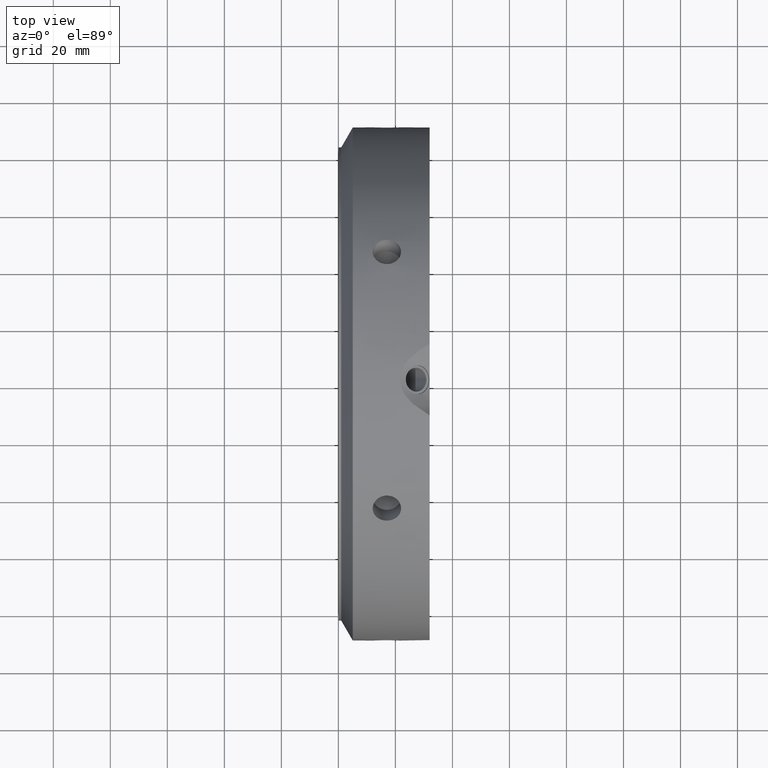
[diagram: clean part render]
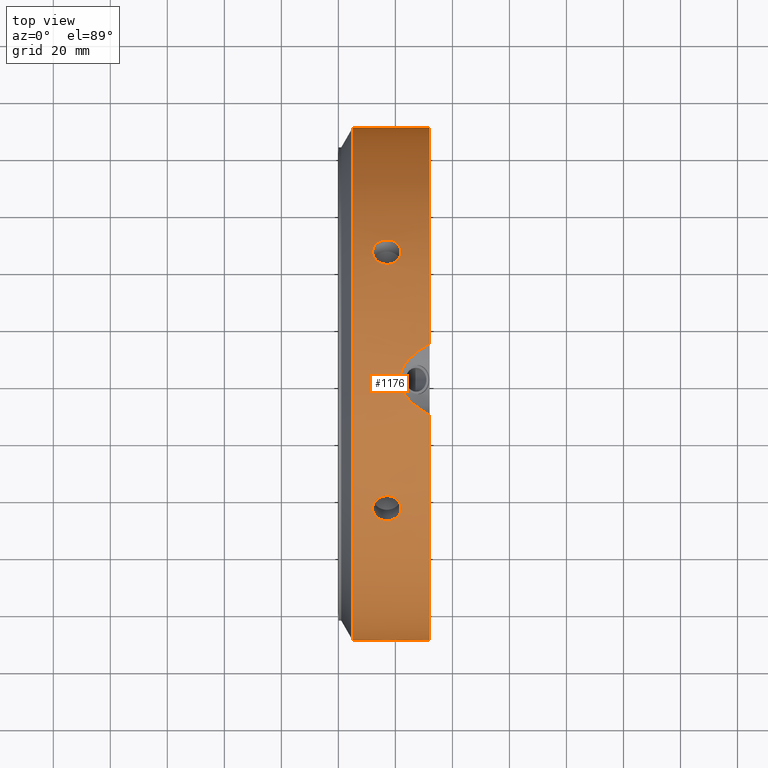
[diagram: same view with one face highlighted and labeled with its STEP entity id]
A machine part, top view. The second image highlights one B-rep face of the part: STEP entity #1176.
In plain terms, the highlighted cylindrical surface (bore or boss wall) has radius 90 mm, axis along (1, 0, 0).
Its self-contained STEP definition (entity closure, byte-faithful):
#90=CARTESIAN_POINT('',(11.999999999999977,45.000000000000071,77.942286340599438));
#91=VERTEX_POINT('',#90);
#92=CARTESIAN_POINT('',(21.999999999999975,45.000000000000071,77.942286340599438));
#93=VERTEX_POINT('',#92);
#94=CARTESIAN_POINT('',(11.999999999999977,45.000000000000071,77.942286340599438));
#95=CARTESIAN_POINT('',(11.999999999999977,45.543820422916994,77.628311473037542));
#96=CARTESIAN_POINT('',(12.125522356060772,46.120189340378353,77.287176657588375));
#97=CARTESIAN_POINT('',(12.635830957704293,47.173911231499716,76.648559279471741));
#98=CARTESIAN_POINT('',(13.020610050421402,47.65146083140381,76.351395490295729));
#99=CARTESIAN_POINT('',(13.908322280700048,48.402792389598673,75.877315461861841));
#100=CARTESIAN_POINT('',(14.470474195681222,48.726726208106506,75.66882732439413));
#101=CARTESIAN_POINT('',(15.702332604151366,49.155553058668119,75.390960195452266));
#102=CARTESIAN_POINT('',(16.372050062583938,49.260628907950817,75.321912081366861));
#103=CARTESIAN_POINT('',(17.627949937416016,49.260628907950817,75.321912081366861));
#104=CARTESIAN_POINT('',(18.297667395848588,49.155553058668112,75.390960195452266));
#105=CARTESIAN_POINT('',(19.529525804318734,48.726726208106498,75.66882732439413));
#106=CARTESIAN_POINT('',(20.091677719299909,48.402792389598659,75.877315461861841));
#107=CARTESIAN_POINT('',(20.979389949578554,47.651460831403796,76.351395490295729));
#108=CARTESIAN_POINT('',(21.364169042295664,47.173911231499716,76.648559279471741));
#109=CARTESIAN_POINT('',(21.874477643939191,46.120189340378353,77.287176657588375));
#110=CARTESIAN_POINT('',(21.999999999999979,45.543820422916994,77.628311473037542));
#111=CARTESIAN_POINT('',(21.999999999999979,45.000000000000071,77.942286340599438));
#112=B_SPLINE_CURVE_WITH_KNOTS('',3,(#94,#95,#96,#97,#98,#99,#100,#101,#102,#103,#104,#105,#106,#107,#108,#109,#110,#111),.UNSPECIFIED.,.F.,.U.,(4,2,2,2,2,2,2,2,4),(0.753539803523906,0.941924724061048,1.130309644598189,1.318694625823001,1.507079607047813,1.695464588272625,1.883849569497438,2.072234490034578,2.260619410571719),.UNSPECIFIED.);
#113=EDGE_CURVE('',#91,#93,#112,.T.);
#115=CARTESIAN_POINT('',(21.999999999999979,45.000000000000071,77.942286340599438));
#116=CARTESIAN_POINT('',(21.999999999999979,44.456179577083148,78.256261208161334));
#117=CARTESIAN_POINT('',(21.874477643939187,43.87256370205818,78.584843924910047));
#118=CARTESIAN_POINT('',(21.364169042295664,42.792643883750287,79.178085162086603));
#119=CARTESIAN_POINT('',(20.979389949578547,42.296517693286972,79.44307335258263));
#120=CARTESIAN_POINT('',(20.091677719299909,41.510286566138944,79.856705554427393));
#121=CARTESIAN_POINT('',(19.529525804318737,41.167763633450285,80.032996401666225));
#122=CARTESIAN_POINT('',(18.297667395848595,40.71271021562918,80.265437783606529));
#123=CARTESIAN_POINT('',(17.62794993741602,40.600374870106457,80.321912081366861));
#124=CARTESIAN_POINT('',(16.999999999999979,40.600374870106457,80.321912081366861));
#125=CARTESIAN_POINT('',(16.372050062583938,40.600374870106457,80.321912081366861));
#126=CARTESIAN_POINT('',(15.702332604151366,40.712710215629173,80.265437783606501));
#127=CARTESIAN_POINT('',(14.470474195681222,41.167763633450278,80.032996401666196));
#128=CARTESIAN_POINT('',(13.908322280700048,41.51028656613893,79.856705554427393));
#129=CARTESIAN_POINT('',(13.020610050421404,42.296517693286958,79.44307335258263));
#130=CARTESIAN_POINT('',(12.63583095770429,42.792643883750287,79.178085162086603));
#131=CARTESIAN_POINT('',(12.125522356060772,43.87256370205818,78.584843924910047));
#132=CARTESIAN_POINT('',(11.999999999999977,44.456179577083141,78.256261208161334));
#133=CARTESIAN_POINT('',(11.999999999999977,45.000000000000064,77.942286340599438));
#134=B_SPLINE_CURVE_WITH_KNOTS('',3,(#115,#116,#117,#118,#119,#120,#121,#122,#123,#124,#125,#126,#127,#128,#129,#130,#131,#132,#133),.UNSPECIFIED.,.F.,.U.,(4,2,2,2,3,2,2,2,4),(2.260619410571719,2.44900433110886,2.637389251646001,2.825774232870812,3.014159214095625,3.202544195320436,3.390929176545248,3.579314097082389,3.767699017619531),.UNSPECIFIED.);
#135=EDGE_CURVE('',#93,#91,#134,.T.);
#202=CARTESIAN_POINT('',(11.999999999999977,90.0,-5.995204E-014));
#203=VERTEX_POINT('',#202);
#204=CARTESIAN_POINT('',(21.999999999999975,90.0,-5.329071E-014));
#205=VERTEX_POINT('',#204);
#206=CARTESIAN_POINT('',(11.999999999999977,90.0,-5.523360E-014));
#207=CARTESIAN_POINT('',(11.999999999999977,90.0,-0.627949735123859));
#208=CARTESIAN_POINT('',(12.12552235606077,89.992753042436391,-1.29766726732172));
#209=CARTESIAN_POINT('',(12.63583095770429,89.966555115249847,-2.529525882614911));
#210=CARTESIAN_POINT('',(13.020610050421404,89.947978524690626,-3.091677862286957));
#211=CARTESIAN_POINT('',(13.908322280700048,89.913078955737475,-3.979390092565601));
#212=CARTESIAN_POINT('',(14.47047419568122,89.894489841556648,-4.36416907727213));
#213=CARTESIAN_POINT('',(15.702332604151364,89.868263274297135,-4.874477588154292));
#214=CARTESIAN_POINT('',(16.372050062583938,89.861003778057139,-5.000000000000055));
#215=CARTESIAN_POINT('',(17.62794993741602,89.861003778057139,-5.000000000000055));
#216=CARTESIAN_POINT('',(18.297667395848588,89.868263274297135,-4.874477588154293));
#217=CARTESIAN_POINT('',(19.52952580431873,89.894489841556648,-4.364169077272132));
#218=CARTESIAN_POINT('',(20.091677719299909,89.913078955737475,-3.979390092565602));
#219=CARTESIAN_POINT('',(20.979389949578547,89.947978524690626,-3.091677862286958));
#220=CARTESIAN_POINT('',(21.364169042295664,89.966555115249847,-2.529525882614911));
#221=CARTESIAN_POINT('',(21.874477643939187,89.992753042436391,-1.29766726732172));
#222=CARTESIAN_POINT('',(21.999999999999975,90.0,-0.62794973512386));
#223=CARTESIAN_POINT('',(21.999999999999975,90.0,-5.703771E-014));
#224=B_SPLINE_CURVE_WITH_KNOTS('',3,(#206,#207,#208,#209,#210,#211,#212,#213,#214,#215,#216,#217,#218,#219,#220,#221,#222,#223),.UNSPECIFIED.,.F.,.U.,(4,2,2,2,2,2,2,2,4),(0.753539803523906,0.941924724061048,1.130309644598189,1.318694625823001,1.507079607047813,1.695464588272625,1.883849569497437,2.072234490034578,2.260619410571719),.UNSPECIFIED.);
#225=EDGE_CURVE('',#203,#205,#224,.T.);
#227=CARTESIAN_POINT('',(21.999999999999979,90.0,-5.676015E-014));
#228=CARTESIAN_POINT('',(21.999999999999979,90.0,0.627949735123748));
#229=CARTESIAN_POINT('',(21.874477643939187,89.992753042436377,1.297667267321605));
#230=CARTESIAN_POINT('',(21.364169042295664,89.966555115249832,2.529525882614796));
#231=CARTESIAN_POINT('',(20.979389949578547,89.947978524690626,3.091677862286846));
#232=CARTESIAN_POINT('',(20.091677719299909,89.913078955737475,3.97939009256549));
#233=CARTESIAN_POINT('',(19.529525804318734,89.894489841556648,4.364169077272019));
#234=CARTESIAN_POINT('',(18.297667395848588,89.868263274297135,4.874477588154179));
#235=CARTESIAN_POINT('',(17.62794993741602,89.861003778057139,4.999999999999945));
#236=CARTESIAN_POINT('',(16.999999999999979,89.861003778057139,4.999999999999945));
#237=CARTESIAN_POINT('',(16.372050062583938,89.861003778057139,4.999999999999945));
#238=CARTESIAN_POINT('',(15.702332604151366,89.868263274297135,4.874477588154179));
#239=CARTESIAN_POINT('',(14.470474195681224,89.894489841556648,4.364169077272019));
#240=CARTESIAN_POINT('',(13.90832228070005,89.913078955737475,3.979390092565491));
#241=CARTESIAN_POINT('',(13.020610050421404,89.947978524690626,3.091677862286846));
#242=CARTESIAN_POINT('',(12.63583095770429,89.966555115249847,2.529525882614798));
#243=CARTESIAN_POINT('',(12.12552235606077,89.992753042436391,1.297667267321607));
#244=CARTESIAN_POINT('',(11.999999999999977,90.0,0.627949735123748));
#245=CARTESIAN_POINT('',(11.999999999999977,90.0,-5.537237E-014));
#246=B_SPLINE_CURVE_WITH_KNOTS('',3,(#227,#228,#229,#230,#231,#232,#233,#234,#235,#236,#237,#238,#239,#240,#241,#242,#243,#244,#245),.UNSPECIFIED.,.F.,.U.,(4,2,2,2,3,2,2,2,4),(2.260619410571719,2.44900433110886,2.637389251646001,2.825774232870813,3.014159214095625,3.202544195320437,3.390929176545249,3.57931409708239,3.767699017619532),.UNSPECIFIED.);
#247=EDGE_CURVE('',#205,#203,#246,.T.);
#314=CARTESIAN_POINT('',(11.999999999999977,44.999999999999986,-77.942286340599495));
#315=VERTEX_POINT('',#314);
#316=CARTESIAN_POINT('',(21.999999999999975,44.999999999999986,-77.942286340599495));
#317=VERTEX_POINT('',#316);
#318=CARTESIAN_POINT('',(11.999999999999979,44.999999999999964,-77.942286340599495));
#319=CARTESIAN_POINT('',(11.999999999999979,44.456179577083049,-78.256261208161391));
#320=CARTESIAN_POINT('',(12.12552235606077,43.872563702058081,-78.584843924910103));
#321=CARTESIAN_POINT('',(12.635830957704288,42.792643883750188,-79.17808516208666));
#322=CARTESIAN_POINT('',(13.020610050421407,42.296517693286866,-79.443073352582672));
#323=CARTESIAN_POINT('',(13.90832228070005,41.510286566138831,-79.856705554427435));
#324=CARTESIAN_POINT('',(14.470474195681216,41.167763633450193,-80.032996401666253));
#325=CARTESIAN_POINT('',(15.702332604151355,40.712710215629087,-80.265437783606558));
#326=CARTESIAN_POINT('',(16.372050062583938,40.60037487010635,-80.321912081366918));
#327=CARTESIAN_POINT('',(17.62794993741602,40.60037487010635,-80.321912081366918));
#328=CARTESIAN_POINT('',(18.297667395848599,40.712710215629087,-80.265437783606558));
#329=CARTESIAN_POINT('',(19.529525804318737,41.167763633450193,-80.032996401666253));
#330=CARTESIAN_POINT('',(20.091677719299909,41.510286566138831,-79.856705554427435));
#331=CARTESIAN_POINT('',(20.979389949578547,42.296517693286859,-79.443073352582672));
#332=CARTESIAN_POINT('',(21.364169042295664,42.792643883750188,-79.17808516208666));
#333=CARTESIAN_POINT('',(21.874477643939187,43.872563702058081,-78.584843924910103));
#334=CARTESIAN_POINT('',(21.999999999999979,44.456179577083041,-78.256261208161405));
#335=CARTESIAN_POINT('',(21.999999999999979,44.999999999999964,-77.942286340599495));
#336=B_SPLINE_CURVE_WITH_KNOTS('',3,(#318,#319,#320,#321,#322,#323,#324,#325,#326,#327,#328,#329,#330,#331,#332,#333,#334,#335),.UNSPECIFIED.,.F.,.U.,(4,2,2,2,2,2,2,2,4),(0.753539803523907,0.941924724061048,1.130309644598189,1.318694625823001,1.507079607047813,1.695464588272625,1.883849569497438,2.072234490034578,2.260619410571719),.UNSPECIFIED.);
#337=EDGE_CURVE('',#315,#317,#336,.T.);
#339=CARTESIAN_POINT('',(21.999999999999979,44.999999999999964,-77.942286340599495));
#340=CARTESIAN_POINT('',(21.999999999999979,45.543820422916895,-77.628311473037598));
#341=CARTESIAN_POINT('',(21.874477643939187,46.120189340378261,-77.287176657588432));
#342=CARTESIAN_POINT('',(21.364169042295664,47.173911231499616,-76.648559279471797));
#343=CARTESIAN_POINT('',(20.979389949578547,47.65146083140371,-76.351395490295772));
#344=CARTESIAN_POINT('',(20.091677719299909,48.402792389598581,-75.877315461861897));
#345=CARTESIAN_POINT('',(19.52952580431873,48.726726208106399,-75.668827324394186));
#346=CARTESIAN_POINT('',(18.297667395848592,49.155553058668019,-75.390960195452323));
#347=CARTESIAN_POINT('',(17.62794993741602,49.260628907950739,-75.321912081366918));
#348=CARTESIAN_POINT('',(16.999999999999979,49.260628907950739,-75.321912081366918));
#349=CARTESIAN_POINT('',(16.372050062583938,49.260628907950739,-75.321912081366918));
#350=CARTESIAN_POINT('',(15.702332604151362,49.155553058668026,-75.390960195452323));
#351=CARTESIAN_POINT('',(14.470474195681224,48.726726208106406,-75.668827324394186));
#352=CARTESIAN_POINT('',(13.90832228070005,48.402792389598581,-75.877315461861897));
#353=CARTESIAN_POINT('',(13.020610050421404,47.65146083140371,-76.351395490295772));
#354=CARTESIAN_POINT('',(12.635830957704284,47.173911231499602,-76.648559279471797));
#355=CARTESIAN_POINT('',(12.125522356060767,46.120189340378239,-77.287176657588432));
#356=CARTESIAN_POINT('',(11.999999999999977,45.543820422916895,-77.628311473037598));
#357=CARTESIAN_POINT('',(11.999999999999977,44.999999999999964,-77.942286340599495));
#358=B_SPLINE_CURVE_WITH_KNOTS('',3,(#339,#340,#341,#342,#343,#344,#345,#346,#347,#348,#349,#350,#351,#352,#353,#354,#355,#356,#357),.UNSPECIFIED.,.F.,.U.,(4,2,2,2,3,2,2,2,4),(2.260619410571719,2.44900433110886,2.637389251646002,2.825774232870814,3.014159214095626,3.202544195320438,3.39092917654525,3.579314097082392,3.767699017619533),.UNSPECIFIED.);
#359=EDGE_CURVE('',#317,#315,#358,.T.);
#426=CARTESIAN_POINT('',(11.999999999999977,-45.000000000000028,-77.942286340599466));
#427=VERTEX_POINT('',#426);
#428=CARTESIAN_POINT('',(21.999999999999975,-45.000000000000028,-77.942286340599466));
#429=VERTEX_POINT('',#428);
#430=CARTESIAN_POINT('',(11.999999999999977,-45.000000000000028,-77.942286340599466));
#431=CARTESIAN_POINT('',(11.999999999999977,-45.543820422916951,-77.628311473037556));
#432=CARTESIAN_POINT('',(12.125522356060767,-46.120189340378303,-77.28717665758839));
#433=CARTESIAN_POINT('',(12.635830957704284,-47.173911231499652,-76.648559279471755));
#434=CARTESIAN_POINT('',(13.020610050421402,-47.65146083140376,-76.351395490295744));
#435=CARTESIAN_POINT('',(13.908322280700048,-48.402792389598631,-75.877315461861855));
#436=CARTESIAN_POINT('',(14.47047419568122,-48.726726208106456,-75.668827324394158));
#437=CARTESIAN_POINT('',(15.702332604151362,-49.155553058668069,-75.390960195452294));
#438=CARTESIAN_POINT('',(16.372050062583938,-49.260628907950789,-75.321912081366889));
#439=CARTESIAN_POINT('',(17.627949937416012,-49.260628907950789,-75.321912081366889));
#440=CARTESIAN_POINT('',(18.297667395848588,-49.155553058668069,-75.390960195452294));
#441=CARTESIAN_POINT('',(19.52952580431873,-48.726726208106456,-75.668827324394158));
#442=CARTESIAN_POINT('',(20.091677719299902,-48.402792389598623,-75.877315461861855));
#443=CARTESIAN_POINT('',(20.979389949578547,-47.65146083140376,-76.351395490295744));
#444=CARTESIAN_POINT('',(21.364169042295657,-47.173911231499673,-76.648559279471741));
#445=CARTESIAN_POINT('',(21.87447764393918,-46.120189340378317,-77.287176657588375));
#446=CARTESIAN_POINT('',(21.999999999999979,-45.543820422916951,-77.628311473037556));
#447=CARTESIAN_POINT('',(21.999999999999979,-45.000000000000028,-77.942286340599466));
#448=B_SPLINE_CURVE_WITH_KNOTS('',3,(#430,#431,#432,#433,#434,#435,#436,#437,#438,#439,#440,#441,#442,#443,#444,#445,#446,#447),.UNSPECIFIED.,.F.,.U.,(4,2,2,2,2,2,2,2,4),(0.753539803523907,0.941924724061048,1.13030964459819,1.318694625823002,1.507079607047813,1.695464588272625,1.883849569497437,2.072234490034578,2.260619410571719),.UNSPECIFIED.);
#449=EDGE_CURVE('',#427,#429,#448,.T.);
#451=CARTESIAN_POINT('',(21.999999999999979,-45.000000000000028,-77.942286340599466));
#452=CARTESIAN_POINT('',(21.999999999999979,-44.456179577083113,-78.256261208161362));
#453=CARTESIAN_POINT('',(21.874477643939191,-43.87256370205813,-78.584843924910061));
#454=CARTESIAN_POINT('',(21.364169042295661,-42.79264388375023,-79.178085162086631));
#455=CARTESIAN_POINT('',(20.979389949578554,-42.296517693286901,-79.443073352582658));
#456=CARTESIAN_POINT('',(20.091677719299909,-41.51028656613888,-79.856705554427407));
#457=CARTESIAN_POINT('',(19.52952580431873,-41.167763633450242,-80.032996401666239));
#458=CARTESIAN_POINT('',(18.297667395848585,-40.712710215629137,-80.265437783606544));
#459=CARTESIAN_POINT('',(17.627949937416012,-40.6003748701064,-80.321912081366889));
#460=CARTESIAN_POINT('',(16.999999999999979,-40.6003748701064,-80.321912081366889));
#461=CARTESIAN_POINT('',(16.372050062583938,-40.6003748701064,-80.321912081366889));
#462=CARTESIAN_POINT('',(15.702332604151373,-40.712710215629137,-80.265437783606544));
#463=CARTESIAN_POINT('',(14.470474195681229,-41.167763633450242,-80.032996401666239));
#464=CARTESIAN_POINT('',(13.908322280700052,-41.51028656613888,-79.856705554427407));
#465=CARTESIAN_POINT('',(13.020610050421404,-42.296517693286901,-79.443073352582658));
#466=CARTESIAN_POINT('',(12.635830957704295,-42.792643883750223,-79.178085162086631));
#467=CARTESIAN_POINT('',(12.125522356060765,-43.87256370205813,-78.584843924910061));
#468=CARTESIAN_POINT('',(11.999999999999977,-44.456179577083105,-78.256261208161362));
#469=CARTESIAN_POINT('',(11.999999999999977,-45.000000000000028,-77.942286340599466));
#470=B_SPLINE_CURVE_WITH_KNOTS('',3,(#451,#452,#453,#454,#455,#456,#457,#458,#459,#460,#461,#462,#463,#464,#465,#466,#467,#468,#469),.UNSPECIFIED.,.F.,.U.,(4,2,2,2,3,2,2,2,4),(2.260619410571719,2.449004331108861,2.637389251646003,2.825774232870815,3.014159214095627,3.202544195320439,3.39092917654525,3.579314097082392,3.767699017619534),.UNSPECIFIED.);
#471=EDGE_CURVE('',#429,#427,#470,.T.);
#538=CARTESIAN_POINT('',(11.999999999999977,-90.0,2.498002E-014));
#539=VERTEX_POINT('',#538);
#540=CARTESIAN_POINT('',(21.999999999999975,-90.0,1.776357E-014));
#541=VERTEX_POINT('',#540);
#542=CARTESIAN_POINT('',(11.999999999999977,-90.0,2.262079E-014));
#543=CARTESIAN_POINT('',(11.999999999999977,-90.0,0.627949735123826));
#544=CARTESIAN_POINT('',(12.12552235606077,-89.992753042436391,1.297667267321688));
#545=CARTESIAN_POINT('',(12.63583095770429,-89.966555115249847,2.529525882614877));
#546=CARTESIAN_POINT('',(13.020610050421402,-89.947978524690626,3.091677862286923));
#547=CARTESIAN_POINT('',(13.908322280700048,-89.913078955737475,3.979390092565568));
#548=CARTESIAN_POINT('',(14.47047419568122,-89.894489841556648,4.364169077272097));
#549=CARTESIAN_POINT('',(15.702332604151364,-89.868263274297135,4.874477588154259));
#550=CARTESIAN_POINT('',(16.372050062583938,-89.861003778057139,5.000000000000022));
#551=CARTESIAN_POINT('',(17.62794993741602,-89.861003778057139,5.000000000000022));
#552=CARTESIAN_POINT('',(18.297667395848588,-89.868263274297135,4.874477588154259));
#553=CARTESIAN_POINT('',(19.52952580431873,-89.894489841556648,4.364169077272099));
#554=CARTESIAN_POINT('',(20.091677719299909,-89.913078955737475,3.979390092565569));
#555=CARTESIAN_POINT('',(20.979389949578547,-89.947978524690626,3.091677862286926));
#556=CARTESIAN_POINT('',(21.364169042295664,-89.966555115249847,2.529525882614879));
#557=CARTESIAN_POINT('',(21.874477643939187,-89.992753042436391,1.297667267321688));
#558=CARTESIAN_POINT('',(21.999999999999975,-90.0,0.627949735123827));
#559=CARTESIAN_POINT('',(21.999999999999975,-90.0,2.442491E-014));
#560=B_SPLINE_CURVE_WITH_KNOTS('',3,(#542,#543,#544,#545,#546,#547,#548,#549,#550,#551,#552,#553,#554,#555,#556,#557,#558,#559),.UNSPECIFIED.,.F.,.U.,(4,2,2,2,2,2,2,2,4),(0.753539803523906,0.941924724061048,1.130309644598189,1.318694625823001,1.507079607047813,1.695464588272625,1.883849569497437,2.072234490034578,2.260619410571719),.UNSPECIFIED.);
#561=EDGE_CURVE('',#539,#541,#560,.T.);
#563=CARTESIAN_POINT('',(21.999999999999979,-90.0,2.442491E-014));
#564=CARTESIAN_POINT('',(21.999999999999979,-90.0,-0.627949735123778));
#565=CARTESIAN_POINT('',(21.874477643939187,-89.992753042436377,-1.297667267321635));
#566=CARTESIAN_POINT('',(21.364169042295664,-89.966555115249832,-2.529525882614828));
#567=CARTESIAN_POINT('',(20.979389949578547,-89.947978524690626,-3.091677862286877));
#568=CARTESIAN_POINT('',(20.091677719299909,-89.913078955737475,-3.979390092565523));
#569=CARTESIAN_POINT('',(19.529525804318734,-89.894489841556663,-4.364169077272052));
#570=CARTESIAN_POINT('',(18.297667395848592,-89.868263274297163,-4.874477588154212));
#571=CARTESIAN_POINT('',(17.627949937416016,-89.861003778057139,-4.999999999999977));
#572=CARTESIAN_POINT('',(16.999999999999979,-89.861003778057139,-4.999999999999977));
#573=CARTESIAN_POINT('',(16.372050062583938,-89.861003778057139,-4.999999999999977));
#574=CARTESIAN_POINT('',(15.702332604151366,-89.868263274297135,-4.874477588154213));
#575=CARTESIAN_POINT('',(14.470474195681224,-89.894489841556648,-4.364169077272052));
#576=CARTESIAN_POINT('',(13.90832228070005,-89.913078955737475,-3.979390092565524));
#577=CARTESIAN_POINT('',(13.020610050421404,-89.947978524690626,-3.091677862286879));
#578=CARTESIAN_POINT('',(12.63583095770429,-89.966555115249847,-2.529525882614831));
#579=CARTESIAN_POINT('',(12.12552235606077,-89.992753042436391,-1.297667267321639));
#580=CARTESIAN_POINT('',(11.999999999999977,-90.0,-0.627949735123781));
#581=CARTESIAN_POINT('',(11.999999999999977,-90.0,2.262079E-014));
#582=B_SPLINE_CURVE_WITH_KNOTS('',3,(#563,#564,#565,#566,#567,#568,#569,#570,#571,#572,#573,#574,#575,#576,#577,#578,#579,#580,#581),.UNSPECIFIED.,.F.,.U.,(4,2,2,2,3,2,2,2,4),(2.260619410571719,2.44900433110886,2.637389251646001,2.825774232870813,3.014159214095625,3.202544195320437,3.390929176545249,3.57931409708239,3.767699017619532),.UNSPECIFIED.);
#583=EDGE_CURVE('',#541,#539,#582,.T.);
#687=CARTESIAN_POINT('',(11.999999999999977,-44.999999999999993,77.94228634059948));
#688=VERTEX_POINT('',#687);
#689=CARTESIAN_POINT('',(21.999999999999975,-44.999999999999993,77.94228634059948));
#690=VERTEX_POINT('',#689);
#691=CARTESIAN_POINT('',(11.999999999999977,-44.999999999999993,77.94228634059948));
#692=CARTESIAN_POINT('',(11.999999999999977,-44.45617957708307,78.256261208161376));
#693=CARTESIAN_POINT('',(12.125522356060767,-43.872563702058102,78.584843924910061));
#694=CARTESIAN_POINT('',(12.63583095770429,-42.792643883750195,79.178085162086631));
#695=CARTESIAN_POINT('',(13.020610050421404,-42.296517693286887,79.443073352582672));
#696=CARTESIAN_POINT('',(13.908322280700048,-41.510286566138852,79.856705554427435));
#697=CARTESIAN_POINT('',(14.47047419568122,-41.167763633450193,80.032996401666239));
#698=CARTESIAN_POINT('',(15.702332604151362,-40.712710215629087,80.265437783606544));
#699=CARTESIAN_POINT('',(16.372050062583938,-40.600374870106378,80.321912081366918));
#700=CARTESIAN_POINT('',(17.62794993741602,-40.600374870106378,80.321912081366918));
#701=CARTESIAN_POINT('',(18.297667395848592,-40.712710215629087,80.265437783606544));
#702=CARTESIAN_POINT('',(19.529525804318734,-41.167763633450193,80.032996401666239));
#703=CARTESIAN_POINT('',(20.091677719299909,-41.510286566138852,79.856705554427435));
#704=CARTESIAN_POINT('',(20.979389949578547,-42.296517693286887,79.443073352582672));
#705=CARTESIAN_POINT('',(21.364169042295664,-42.792643883750195,79.178085162086646));
#706=CARTESIAN_POINT('',(21.874477643939187,-43.872563702058088,78.584843924910089));
#707=CARTESIAN_POINT('',(21.999999999999975,-44.45617957708307,78.256261208161376));
#708=CARTESIAN_POINT('',(21.999999999999975,-44.999999999999993,77.94228634059948));
#709=B_SPLINE_CURVE_WITH_KNOTS('',3,(#691,#692,#693,#694,#695,#696,#697,#698,#699,#700,#701,#702,#703,#704,#705,#706,#707,#708),.UNSPECIFIED.,.F.,.U.,(4,2,2,2,2,2,2,2,4),(0.753539803523906,0.941924724061048,1.130309644598189,1.318694625823001,1.507079607047813,1.695464588272625,1.883849569497436,2.072234490034577,2.260619410571719),.UNSPECIFIED.);
#710=EDGE_CURVE('',#688,#690,#709,.T.);
#712=CARTESIAN_POINT('',(21.999999999999979,-45.0,77.942286340599466));
#713=CARTESIAN_POINT('',(21.999999999999979,-45.543820422916916,77.62831147303757));
#714=CARTESIAN_POINT('',(21.87447764393918,-46.120189340378275,77.287176657588418));
#715=CARTESIAN_POINT('',(21.364169042295668,-47.173911231499623,76.648559279471797));
#716=CARTESIAN_POINT('',(20.979389949578547,-47.651460831403725,76.351395490295772));
#717=CARTESIAN_POINT('',(20.091677719299909,-48.402792389598595,75.877315461861883));
#718=CARTESIAN_POINT('',(19.529525804318734,-48.726726208106413,75.668827324394186));
#719=CARTESIAN_POINT('',(18.297667395848592,-49.155553058668033,75.390960195452323));
#720=CARTESIAN_POINT('',(17.62794993741602,-49.26062890795076,75.321912081366918));
#721=CARTESIAN_POINT('',(16.999999999999979,-49.26062890795076,75.321912081366918));
#722=CARTESIAN_POINT('',(16.372050062583938,-49.26062890795076,75.321912081366918));
#723=CARTESIAN_POINT('',(15.702332604151366,-49.155553058668033,75.390960195452323));
#724=CARTESIAN_POINT('',(14.470474195681227,-48.726726208106413,75.668827324394186));
#725=CARTESIAN_POINT('',(13.90832228070005,-48.402792389598595,75.877315461861883));
#726=CARTESIAN_POINT('',(13.020610050421404,-47.651460831403725,76.351395490295772));
#727=CARTESIAN_POINT('',(12.635830957704284,-47.173911231499616,76.648559279471783));
#728=CARTESIAN_POINT('',(12.125522356060767,-46.120189340378268,77.287176657588404));
#729=CARTESIAN_POINT('',(11.999999999999975,-45.543820422916916,77.628311473037584));
#730=CARTESIAN_POINT('',(11.999999999999975,-44.999999999999993,77.94228634059948));
#731=B_SPLINE_CURVE_WITH_KNOTS('',3,(#712,#713,#714,#715,#716,#717,#718,#719,#720,#721,#722,#723,#724,#725,#726,#727,#728,#729,#730),.UNSPECIFIED.,.F.,.U.,(4,2,2,2,3,2,2,2,4),(2.260619410571719,2.44900433110886,2.637389251646001,2.825774232870813,3.014159214095625,3.202544195320437,3.390929176545249,3.57931409708239,3.767699017619532),.UNSPECIFIED.);
#732=EDGE_CURVE('',#690,#688,#731,.T.);
#873=CARTESIAN_POINT('',(31.999999999999979,70.901105695192655,-55.434945758060586));
#874=VERTEX_POINT('',#873);
#875=CARTESIAN_POINT('',(31.999999999999979,83.458624131489159,-33.684685809412201));
#876=VERTEX_POINT('',#875);
#884=CARTESIAN_POINT('',(31.999999999999979,83.458624131489145,-33.684685809412201));
#885=CARTESIAN_POINT('',(30.762403361094567,83.206790799405255,-34.308638887825559));
#886=CARTESIAN_POINT('',(29.578118330009122,82.928264260494373,-34.978965531424265));
#887=CARTESIAN_POINT('',(26.744200185456005,82.129268378846348,-36.82770721091601));
#888=CARTESIAN_POINT('',(25.001021741629749,81.500824910698526,-38.219589933438208));
#889=CARTESIAN_POINT('',(23.071324808440895,80.328730169483919,-40.596496336924375));
#890=CARTESIAN_POINT('',(22.540859906622821,79.899524762346658,-41.437212248181282));
#891=CARTESIAN_POINT('',(21.808828787062758,78.970372794063167,-43.181672466850472));
#892=CARTESIAN_POINT('',(21.607695154586743,78.470265770574116,-44.085512801932666));
#893=CARTESIAN_POINT('',(21.60769515458675,77.414306910624774,-45.914487198067434));
#894=CARTESIAN_POINT('',(21.808828787062758,76.881611731223089,-46.799512752561071));
#895=CARTESIAN_POINT('',(22.540859906622821,75.835440850105954,-48.476412070405495));
#896=CARTESIAN_POINT('',(23.071324808440913,75.321962217160319,-49.268472812056444));
#897=CARTESIAN_POINT('',(25.001021741629764,73.8495482599307,-51.471989835333517));
#898=CARTESIAN_POINT('',(26.744200185456037,72.958364197211708,-52.712179204853001));
#899=CARTESIAN_POINT('',(29.578118330009147,71.756804878560757,-54.328500775625209));
#900=CARTESIAN_POINT('',(30.762403361094574,71.315548245826179,-54.904875155749565));
#901=CARTESIAN_POINT('',(31.999999999999975,70.901105695192655,-55.434945758060572));
#902=B_SPLINE_CURVE_WITH_KNOTS('',3,(#884,#885,#886,#887,#888,#889,#890,#891,#892,#893,#894,#895,#896,#897,#898,#899,#900,#901),.UNSPECIFIED.,.F.,.U.,(4,2,2,2,2,2,2,2,4),(2.422619632104516,2.832049543339792,3.465624859309394,3.782412517294195,4.099200175278996,4.415987833263798,4.732775491248599,5.366350807218203,5.775780718453477),.UNSPECIFIED.);
#903=EDGE_CURVE('',#876,#874,#902,.T.);
#1044=CARTESIAN_POINT('',(31.999999999999979,-83.458624131489159,-33.684685809412173));
#1045=VERTEX_POINT('',#1044);
#1046=CARTESIAN_POINT('',(31.999999999999979,-70.90110569519274,-55.434945758060479));
#1047=VERTEX_POINT('',#1046);
#1055=CARTESIAN_POINT('',(31.999999999999957,-70.901105695192726,-55.434945758060501));
#1056=CARTESIAN_POINT('',(30.697248612911316,-71.337367067220939,-54.876968957940605));
#1057=CARTESIAN_POINT('',(29.453582347460937,-71.80328444349648,-54.267785284361203));
#1058=CARTESIAN_POINT('',(26.608848157421697,-73.026150762767969,-52.618020684054805));
#1059=CARTESIAN_POINT('',(24.907745236850417,-73.907770177633466,-51.38767544515936));
#1060=CARTESIAN_POINT('',(23.02845183298929,-75.361621515232542,-49.207610703175284));
#1061=CARTESIAN_POINT('',(22.512640663717988,-75.868256524762472,-48.424763457689664));
#1062=CARTESIAN_POINT('',(21.802020502861794,-76.899231774506205,-46.770270649835091));
#1063=CARTESIAN_POINT('',(21.607695154586747,-77.423581426875117,-45.898423264706246));
#1064=CARTESIAN_POINT('',(21.607695154586747,-78.460991254323886,-44.101576735293719));
#1065=CARTESIAN_POINT('',(21.802020502861808,-78.953858411884056,-43.211552923312276));
#1066=CARTESIAN_POINT('',(22.512640663718003,-79.871203588992884,-41.491455762433908));
#1067=CARTESIAN_POINT('',(23.028451832989298,-80.295851686101116,-40.6612733509916));
#1068=CARTESIAN_POINT('',(24.907745236850424,-81.456917465754572,-38.312168788312782));
#1069=CARTESIAN_POINT('',(26.608848157421718,-82.081617990630519,-36.93349135912198));
#1070=CARTESIAN_POINT('',(29.453582347460955,-82.898922885124392,-35.049575761047294));
#1071=CARTESIAN_POINT('',(30.697248612911334,-83.19353273387712,-34.341487640338372));
#1072=CARTESIAN_POINT('',(31.999999999999961,-83.458624131489188,-33.684685809412144));
#1073=B_SPLINE_CURVE_WITH_KNOTS('',3,(#1055,#1056,#1057,#1058,#1059,#1060,#1061,#1062,#1063,#1064,#1065,#1066,#1067,#1068,#1069,#1070,#1071,#1072),.UNSPECIFIED.,.F.,.U.,(4,2,2,2,2,2,2,2,4),(2.351569152990377,2.781676062554614,3.404121959023874,3.715344907258504,4.026567855493134,4.337790803727764,4.649013751962395,5.271459648431655,5.701566557995889),.UNSPECIFIED.);
#1074=EDGE_CURVE('',#1047,#1045,#1073,.T.);
#1082=CARTESIAN_POINT('',(18.520725942163661,0.0,0.0));
#1083=DIRECTION('',(1.0,0.0,0.0));
#1084=DIRECTION('',(0.0,1.0,0.0));
#1085=AXIS2_PLACEMENT_3D('',#1082,#1083,#1084);
#1086=CYLINDRICAL_SURFACE('',#1085,90.0);
#1087=CARTESIAN_POINT('',(5.041451884327342,90.0,0.0));
#1088=VERTEX_POINT('',#1087);
#1089=CARTESIAN_POINT('',(5.041451884327342,0.0,0.0));
#1090=DIRECTION('',(1.0,0.0,0.0));
#1091=DIRECTION('',(0.0,1.0,0.0));
#1092=AXIS2_PLACEMENT_3D('',#1089,#1090,#1091);
#1093=CIRCLE('',#1092,90.0);
#1094=EDGE_CURVE('',#1088,#1088,#1093,.T.);
#1095=ORIENTED_EDGE('',*,*,#1094,.T.);
#1096=EDGE_LOOP('',(#1095));
#1097=FACE_OUTER_BOUND('',#1096,.T.);
#1098=ORIENTED_EDGE('',*,*,#113,.T.);
#1099=ORIENTED_EDGE('',*,*,#135,.T.);
#1100=EDGE_LOOP('',(#1098,#1099));
#1101=FACE_BOUND('',#1100,.T.);
#1102=ORIENTED_EDGE('',*,*,#225,.T.);
#1103=ORIENTED_EDGE('',*,*,#247,.T.);
#1104=EDGE_LOOP('',(#1102,#1103));
#1105=FACE_BOUND('',#1104,.T.);
#1106=ORIENTED_EDGE('',*,*,#337,.T.);
#1107=ORIENTED_EDGE('',*,*,#359,.T.);
#1108=EDGE_LOOP('',(#1106,#1107));
#1109=FACE_BOUND('',#1108,.T.);
#1110=ORIENTED_EDGE('',*,*,#449,.T.);
#1111=ORIENTED_EDGE('',*,*,#471,.T.);
#1112=EDGE_LOOP('',(#1110,#1111));
#1113=FACE_BOUND('',#1112,.T.);
#1114=ORIENTED_EDGE('',*,*,#561,.T.);
#1115=ORIENTED_EDGE('',*,*,#583,.T.);
#1116=EDGE_LOOP('',(#1114,#1115));
#1117=FACE_BOUND('',#1116,.T.);
#1118=ORIENTED_EDGE('',*,*,#710,.T.);
#1119=ORIENTED_EDGE('',*,*,#732,.T.);
#1120=EDGE_LOOP('',(#1118,#1119));
#1121=FACE_BOUND('',#1120,.T.);
#1122=ORIENTED_EDGE('',*,*,#903,.T.);
#1123=CARTESIAN_POINT('',(31.999999999999979,0.0,0.0));
#1124=DIRECTION('',(1.0,0.0,0.0));
#1125=DIRECTION('',(0.0,1.0,0.0));
#1126=AXIS2_PLACEMENT_3D('',#1123,#1124,#1125);
#1127=CIRCLE('',#1126,90.0);
#1128=EDGE_CURVE('',#1047,#874,#1127,.T.);
#1129=ORIENTED_EDGE('',*,*,#1128,.F.);
#1130=ORIENTED_EDGE('',*,*,#1074,.T.);
#1131=CARTESIAN_POINT('',(31.999999999999979,-12.55751843629649,89.119631567472695));
#1132=VERTEX_POINT('',#1131);
#1133=CARTESIAN_POINT('',(31.999999999999979,0.0,0.0));
#1134=DIRECTION('',(1.0,0.0,0.0));
#1135=DIRECTION('',(0.0,1.0,0.0));
#1136=AXIS2_PLACEMENT_3D('',#1133,#1134,#1135);
#1137=CIRCLE('',#1136,90.0);
#1138=EDGE_CURVE('',#1132,#1045,#1137,.T.);
#1139=ORIENTED_EDGE('',*,*,#1138,.F.);
#1140=CARTESIAN_POINT('',(31.999999999999979,12.55751843629649,89.119631567472695));
#1141=VERTEX_POINT('',#1140);
#1142=CARTESIAN_POINT('',(31.999999999999979,-12.557518436296487,89.119631567472695));
#1143=CARTESIAN_POINT('',(31.506959343344612,-12.292083731319289,89.157032992307578));
#1144=CARTESIAN_POINT('',(31.022001317575125,-12.017814368604745,89.194472117824205));
#1145=CARTESIAN_POINT('',(28.97559048274659,-10.797415792960241,89.354960215213566));
#1146=CARTESIAN_POINT('',(27.509312107308261,-9.762377726428897,89.476517213442037));
#1147=CARTESIAN_POINT('',(25.007131231203239,-7.527599533517043,89.691178092134209));
#1148=CARTESIAN_POINT('',(23.814734916289247,-6.210576910547139,89.79760032516748));
#1149=CARTESIAN_POINT('',(22.534665622967843,-3.998756876717542,89.9141537399302));
#1150=CARTESIAN_POINT('',(22.19115152314312,-3.221541529748822,89.945857853908677));
#1151=CARTESIAN_POINT('',(21.727403429424648,-1.627535731798921,89.988814874033167));
#1152=CARTESIAN_POINT('',(21.607695154586747,-0.81059055326531,90.0));
#1153=CARTESIAN_POINT('',(21.607695154586747,0.81059055326531,90.0));
#1154=CARTESIAN_POINT('',(21.727403429424648,1.627535731798921,89.988814874033167));
#1155=CARTESIAN_POINT('',(22.19115152314312,3.221541529748822,89.945857853908677));
#1156=CARTESIAN_POINT('',(22.534665622967843,3.998756876717542,89.9141537399302));
#1157=CARTESIAN_POINT('',(23.814734916289247,6.210576910547139,89.79760032516748));
#1158=CARTESIAN_POINT('',(25.007131231203239,7.527599533517043,89.691178092134209));
#1159=CARTESIAN_POINT('',(27.509312107308261,9.762377726428897,89.476517213442037));
#1160=CARTESIAN_POINT('',(28.97559048274659,10.797415792960241,89.354960215213566));
#1161=CARTESIAN_POINT('',(31.022001317575125,12.017814368604743,89.194472117824205));
#1162=CARTESIAN_POINT('',(31.506959343344615,12.292083731319288,89.157032992307578));
#1163=CARTESIAN_POINT('',(31.999999999999986,12.557518436296483,89.119631567472695));
#1164=B_SPLINE_CURVE_WITH_KNOTS('',3,(#1142,#1143,#1144,#1145,#1146,#1147,#1148,#1149,#1150,#1151,#1152,#1153,#1154,#1155,#1156,#1157,#1158,#1159,#1160,#1161,#1162,#1163),.UNSPECIFIED.,.F.,.U.,(4,2,2,2,2,2,2,2,2,2,4),(1.408543944784535,1.5664931217464,2.088657495661867,2.575011827621053,2.818188993600646,3.061366159580238,3.304543325559831,3.547720491539424,4.03407482349861,4.556239197414077,4.714188374375941),.UNSPECIFIED.);
#1165=EDGE_CURVE('',#1132,#1141,#1164,.T.);
#1166=ORIENTED_EDGE('',*,*,#1165,.T.);
#1167=CARTESIAN_POINT('',(31.999999999999979,0.0,0.0));
#1168=DIRECTION('',(1.0,0.0,0.0));
#1169=DIRECTION('',(0.0,1.0,0.0));
#1170=AXIS2_PLACEMENT_3D('',#1167,#1168,#1169);
#1171=CIRCLE('',#1170,90.0);
#1172=EDGE_CURVE('',#876,#1141,#1171,.T.);
#1173=ORIENTED_EDGE('',*,*,#1172,.F.);
#1174=EDGE_LOOP('',(#1122,#1129,#1130,#1139,#1166,#1173));
#1175=FACE_BOUND('',#1174,.T.);
#1176=ADVANCED_FACE('',(#1097,#1101,#1105,#1109,#1113,#1117,#1121,#1175),#1086,.T.);